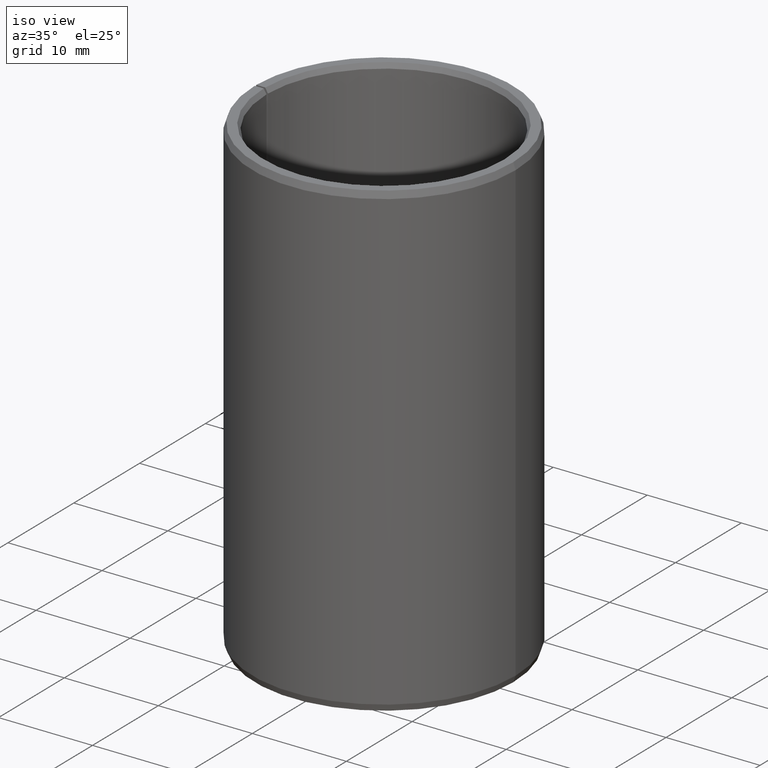
[diagram: clean part render]
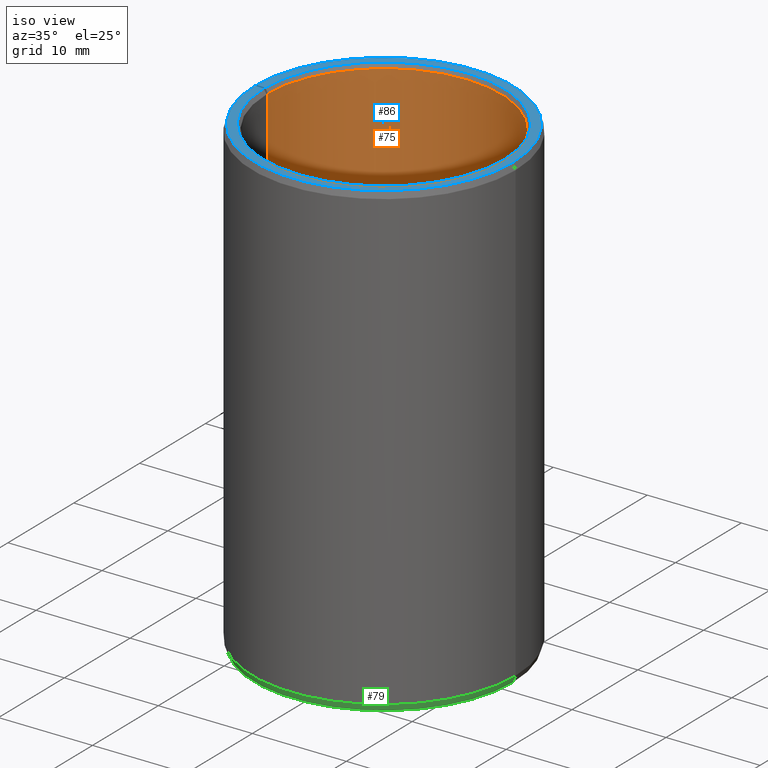
[diagram: same view with three faces highlighted in distinct colors, each labeled with its STEP entity id]
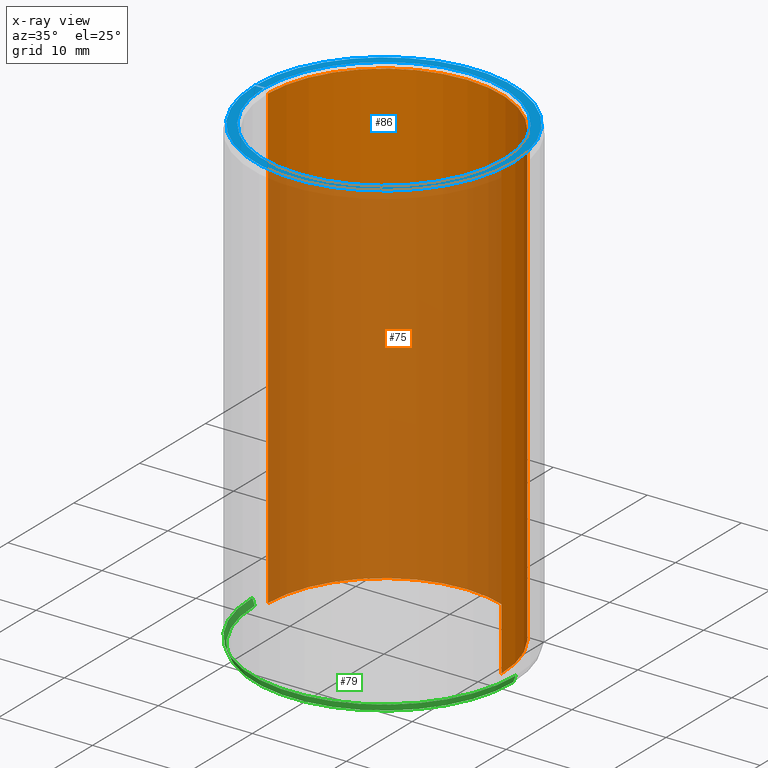
[diagram: x-ray of the same camera — body ghosted, the three highlighted faces saturated]
A machine part, iso view with three faces highlighted in distinct colors.
The next image is the same camera in x-ray (body ghosted, the three faces saturated) — at least one of them is partly hidden behind the body in this view.
Their STEP definitions:

[orange] entity #75 — the highlighted cylindrical surface (partial cylindrical patch) has radius 12.5 mm, axis along (0, -0, 1).
#75=ADVANCED_FACE('',(#92),#93,.F.);
#92=FACE_OUTER_BOUND('',#124,.T.);
#93=CYLINDRICAL_SURFACE('',#125,12.5);
#124=EDGE_LOOP('',(#156,#157,#158,#159));
#125=AXIS2_PLACEMENT_3D('',#160,#161,#162);
#156=ORIENTED_EDGE('',*,*,#280,.F.);
#157=ORIENTED_EDGE('',*,*,#281,.T.);
#158=ORIENTED_EDGE('',*,*,#282,.T.);
#159=ORIENTED_EDGE('',*,*,#283,.F.);
#160=CARTESIAN_POINT('',(1.4070985527472E-014,-1.44766231198992E-014,25.0));
#161=DIRECTION('',(5.48707263966375E-016,-6.09939603923744E-016,1.0));
#162=DIRECTION('',(-1.0,1.72118583537496E-015,5.48707263966376E-016));
#280=EDGE_CURVE('',#318,#319,#320,.T.);
#281=EDGE_CURVE('',#318,#321,#322,.T.);
#282=EDGE_CURVE('',#321,#323,#324,.T.);
#283=EDGE_CURVE('',#319,#323,#325,.T.);
#318=VERTEX_POINT('',#380);
#319=VERTEX_POINT('',#381);
#320=LINE('',#382,#383);
#321=VERTEX_POINT('',#384);
#322=CIRCLE('',#385,12.5);
#323=VERTEX_POINT('',#386);
#324=LINE('',#387,#388);
#325=CIRCLE('',#389,12.5);
#380=CARTESIAN_POINT('',(12.5,-5.31707204924576E-014,49.5));
#381=CARTESIAN_POINT('',(12.5,-2.40942346788336E-014,0.499999999999993));
#382=CARTESIAN_POINT('',(12.5,-3.75222545610204E-014,25.0));
#383=VECTOR('',#464,1.0);
#384=CARTESIAN_POINT('',(-12.4980961894549,0.218155080466037,49.5));
#385=AXIS2_PLACEMENT_3D('',#465,#466,#467);
#386=CARTESIAN_POINT('',(-12.4980961894549,0.218155080466068,0.500000000000007));
#387=CARTESIAN_POINT('',(-12.4980961894549,0.218155080466037,49.5));
#388=VECTOR('',#468,10.0);
#389=AXIS2_PLACEMENT_3D('',#469,#470,#471);
#464=DIRECTION('',(-5.48707263966375E-016,6.09939603923743E-016,-1.0));
#465=CARTESIAN_POINT('',(2.75143134946482E-014,-3.01403971363258E-014,49.5));
#466=DIRECTION('',(5.48707263966375E-016,-6.09939603923744E-016,1.0));
#467=DIRECTION('',(-1.0,1.72118583537496E-015,5.48707263966376E-016));
#468=DIRECTION('',(-7.29427491250437E-016,6.42496676414018E-016,-1.0));
#469=CARTESIAN_POINT('',(6.27657560295824E-016,-1.03329515272304E-015,0.5));
#470=DIRECTION('',(5.48707263966375E-016,-6.09939603923743E-016,1.0));
#471=DIRECTION('',(-1.0,1.72118583537496E-015,5.48707263966376E-016));

[blue] entity #86 — the highlighted planar face has unit normal (0, -0, 1).
#86=ADVANCED_FACE('',(#114),#115,.T.);
#114=FACE_OUTER_BOUND('',#146,.T.);
#115=PLANE('',#147);
#146=EDGE_LOOP('',(#235,#236,#237,#238,#239,#240));
#147=AXIS2_PLACEMENT_3D('',#241,#242,#243);
#235=ORIENTED_EDGE('',*,*,#312,.T.);
#236=ORIENTED_EDGE('',*,*,#285,.F.);
#237=ORIENTED_EDGE('',*,*,#313,.F.);
#238=ORIENTED_EDGE('',*,*,#314,.F.);
#239=ORIENTED_EDGE('',*,*,#288,.T.);
#240=ORIENTED_EDGE('',*,*,#311,.T.);
#241=CARTESIAN_POINT('',(-13.2669479853042,-7.48636705682855E-015,50.0));
#242=DIRECTION('',(5.48707263966375E-016,-6.09939603923743E-016,1.0));
#243=DIRECTION('',(-1.0,1.89882151931499E-015,5.48707263966376E-016));
#285=EDGE_CURVE('',#326,#328,#329,.T.);
#288=EDGE_CURVE('',#334,#331,#335,.T.);
#311=EDGE_CURVE('',#331,#369,#371,.T.);
#312=EDGE_CURVE('',#369,#328,#372,.T.);
#313=EDGE_CURVE('',#373,#326,#374,.T.);
#314=EDGE_CURVE('',#334,#373,#375,.T.);
#326=VERTEX_POINT('',#390);
#328=VERTEX_POINT('',#393);
#329=CIRCLE('',#394,12.7886751345948);
#331=VERTEX_POINT('',#397);
#334=VERTEX_POINT('',#401);
#335=CIRCLE('',#402,13.7452208360137);
#369=VERTEX_POINT('',#448);
#371=CIRCLE('',#451,13.7452208360137);
#372=LINE('',#452,#453);
#373=VERTEX_POINT('',#454);
#374=CIRCLE('',#455,12.7886751345948);
#375=LINE('',#456,#457);
#390=CARTESIAN_POINT('',(12.7886751345948,-5.40079063550665E-014,50.0));
#393=CARTESIAN_POINT('',(-12.7867273574284,0.223193156243323,50.0));
#394=AXIS2_PLACEMENT_3D('',#473,#474,#475);
#397=CARTESIAN_POINT('',(13.7452208360137,-5.57775655643813E-014,50.0));
#401=CARTESIAN_POINT('',(-13.7452208360136,-6.81989385394867E-015,50.0));
#402=AXIS2_PLACEMENT_3D('',#478,#479,#480);
#448=CARTESIAN_POINT('',(-13.7431273723038,0.239887180600322,50.0));
#451=AXIS2_PLACEMENT_3D('',#521,#522,#523);
#452=CARTESIAN_POINT('',(-13.7431273723038,0.239887180600324,50.0));
#453=VECTOR('',#524,10.0);
#454=CARTESIAN_POINT('',(-12.7886751345948,-8.15284025970843E-015,50.0));
#455=AXIS2_PLACEMENT_3D('',#525,#526,#527);
#456=CARTESIAN_POINT('',(-13.7452208360136,-6.81989385394867E-015,50.0));
#457=VECTOR('',#528,10.0);
#473=CARTESIAN_POINT('',(2.77886671266314E-014,-3.04147507683089E-014,50.0));
#474=DIRECTION('',(5.48707263966375E-016,-6.09939603923743E-016,1.0));
#475=DIRECTION('',(-1.0,1.72118583537496E-015,5.48707263966376E-016));
#478=CARTESIAN_POINT('',(2.77886671266314E-014,-3.04147507683089E-014,50.0));
#479=DIRECTION('',(5.48707263966375E-016,-6.09939603923743E-016,1.0));
#480=DIRECTION('',(-1.0,1.72118583537496E-015,5.48707263966376E-016));
#521=CARTESIAN_POINT('',(2.77886671266314E-014,-3.04147507683089E-014,50.0));
#522=DIRECTION('',(5.48707263966375E-016,-6.09939603923743E-016,1.0));
#523=DIRECTION('',(-1.0,1.72118583537496E-015,5.48707263966376E-016));
#524=DIRECTION('',(0.999847695156391,-0.0174524064372855,-5.59268607062224E-016));
#525=CARTESIAN_POINT('',(2.77886671266314E-014,-3.04147507683089E-014,50.0));
#526=DIRECTION('',(5.48707263966375E-016,-6.09939603923743E-016,1.0));
#527=DIRECTION('',(-1.0,1.72118583537496E-015,5.48707263966376E-016));
#528=DIRECTION('',(1.0,-1.89882151931499E-015,-5.48707263966376E-016));

[green] entity #79 — the highlighted conical surface has half-angle 20 deg.
#79=ADVANCED_FACE('',(#100),#101,.T.);
#100=FACE_OUTER_BOUND('',#132,.T.);
#101=CONICAL_SURFACE('',#133,13.8726104180068,0.349065850398868);
#132=EDGE_LOOP('',(#184,#185,#186,#187));
#133=AXIS2_PLACEMENT_3D('',#188,#189,#190);
#184=ORIENTED_EDGE('',*,*,#294,.F.);
#185=ORIENTED_EDGE('',*,*,#293,.F.);
#186=ORIENTED_EDGE('',*,*,#295,.F.);
#187=ORIENTED_EDGE('',*,*,#296,.T.);
#188=CARTESIAN_POINT('',(5.4535147070087E-016,-9.50989063128086E-016,0.350000000000003));
#189=DIRECTION('',(5.48707263966375E-016,-6.09939603923743E-016,1.0));
#190=DIRECTION('',(-1.0,1.72118583537496E-015,5.48707263966376E-016));
#293=EDGE_CURVE('',#341,#339,#343,.T.);
#294=EDGE_CURVE('',#339,#344,#345,.T.);
#295=EDGE_CURVE('',#346,#341,#347,.T.);
#296=EDGE_CURVE('',#346,#344,#348,.T.);
#339=VERTEX_POINT('',#407);
#341=VERTEX_POINT('',#410);
#343=CIRCLE('',#413,14.0);
#344=VERTEX_POINT('',#414);
#345=LINE('',#415,#416);
#346=VERTEX_POINT('',#417);
#347=LINE('',#418,#419);
#348=CIRCLE('',#420,13.7452208360137);
#407=CARTESIAN_POINT('',(14.0,-2.69755751385571E-014,0.699999999999997));
#410=CARTESIAN_POINT('',(-14.0,2.50273011153404E-014,0.700000000000009));
#413=AXIS2_PLACEMENT_3D('',#487,#488,#489);
#414=CARTESIAN_POINT('',(13.7452208360137,-2.6078893678842E-014,-6.15432373676123E-015));
#415=CARTESIAN_POINT('',(13.8726104180068,-2.65272344086996E-014,0.349999999999995));
#416=VECTOR('',#490,1.0);
#417=CARTESIAN_POINT('',(-13.7452208360137,2.50563614428707E-014,9.07750282358564E-015));
#418=CARTESIAN_POINT('',(-13.7452208360137,2.50563614428707E-014,9.07750282358564E-015));
#419=VECTOR('',#491,9.99999999999999);
#420=AXIS2_PLACEMENT_3D('',#492,#493,#494);
#487=CARTESIAN_POINT('',(7.37399013089102E-016,-1.14303660551632E-015,0.700000000000004));
#488=DIRECTION('',(5.48707263966375E-016,-6.09939603923743E-016,1.0));
#489=DIRECTION('',(-1.0,1.72118583537496E-015,5.48707263966376E-016));
#490=DIRECTION('',(-0.342020143325671,1.20372135841405E-015,-0.939692620785908));
#491=DIRECTION('',(-0.34202014332567,1.3381904126515E-016,0.939692620785908));
#492=CARTESIAN_POINT('',(3.53303928312638E-016,-7.58941520739854E-016,1.40055521273414E-015));
#493=DIRECTION('',(5.48707263966375E-016,-6.09939603923743E-016,1.0));
#494=DIRECTION('',(-1.0,1.72118583537496E-015,5.48707263966376E-016));